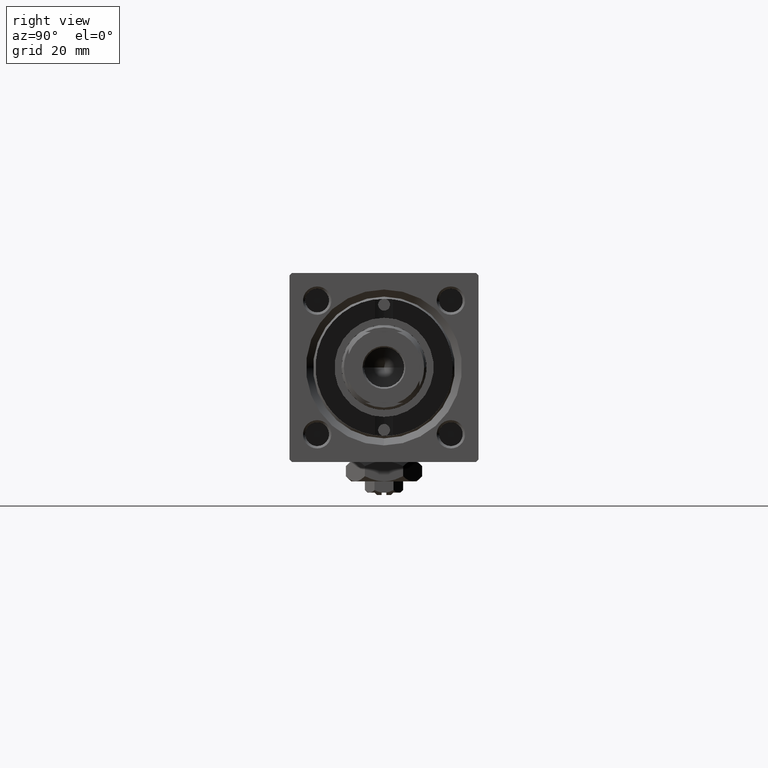
[diagram: clean part render]
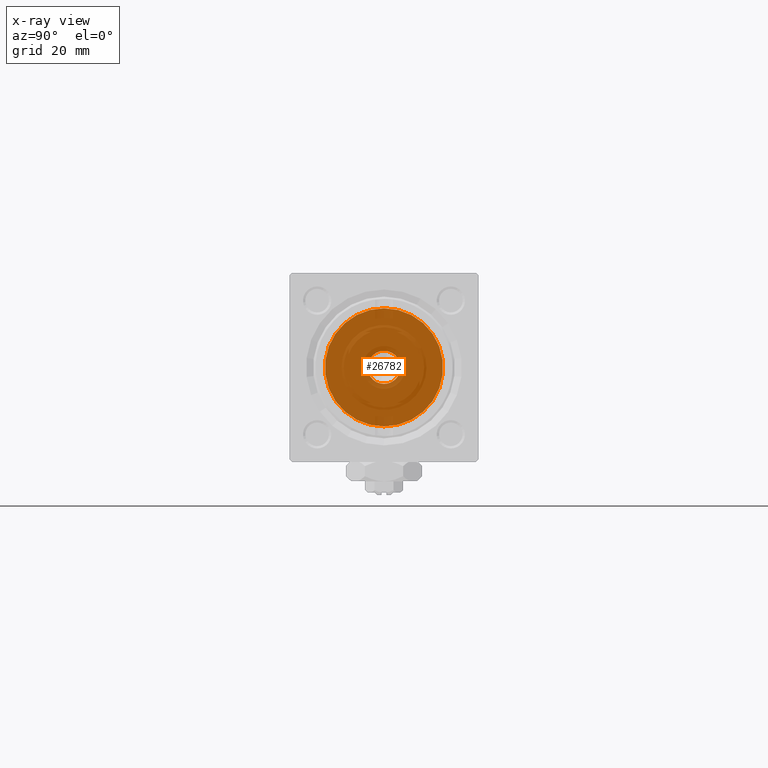
[diagram: x-ray — body ghosted, one internal face saturated and labeled with its STEP entity id]
A machine part, right view, then the same camera in x-ray: the body is ghosted and one INTERNAL B-rep face — a face not visible from any outside direction — is saturated and labeled: STEP entity #26782.
In plain terms, the highlighted planar face has unit normal (-1, 0, 0).
Its self-contained STEP definition (entity closure, byte-faithful):
#1473 = CARTESIAN_POINT ( 'NONE',  ( 24.00000000000000000, -2.602085213965210642E-15, 0.000000000000000000 ) ) ;
#1818 = CIRCLE ( 'NONE', #45679, 3.500000000000000000 ) ;
#3241 = AXIS2_PLACEMENT_3D ( 'NONE', #1473, #5944, #37391 ) ;
#4410 = EDGE_CURVE ( 'NONE', #6244, #29390, #36107, .T. ) ;
#4928 = ORIENTED_EDGE ( 'NONE', *, *, #43959, .T. ) ;
#5281 = DIRECTION ( 'NONE',  ( 0.000000000000000000, 0.000000000000000000, 1.000000000000000000 ) ) ;
#5536 = AXIS2_PLACEMENT_3D ( 'NONE', #18155, #50629, #18935 ) ;
#5944 = DIRECTION ( 'NONE',  ( 1.000000000000000000, 0.000000000000000000, 0.000000000000000000 ) ) ;
#5977 = FACE_BOUND ( 'NONE', #28302, .T. ) ;
#6244 = VERTEX_POINT ( 'NONE', #18945 ) ;
#9640 = DIRECTION ( 'NONE',  ( 0.000000000000000000, 0.000000000000000000, 1.000000000000000000 ) ) ;
#10032 = DIRECTION ( 'NONE',  ( -1.000000000000000000, -0.000000000000000000, -0.000000000000000000 ) ) ;
#13309 = EDGE_CURVE ( 'NONE', #34857, #51858, #1818, .T. ) ;
#18155 = CARTESIAN_POINT ( 'NONE',  ( 24.00000000000000000, 0.000000000000000000, 0.000000000000000000 ) ) ;
#18935 = DIRECTION ( 'NONE',  ( -0.000000000000000000, 0.000000000000000000, 1.000000000000000000 ) ) ;
#18945 = CARTESIAN_POINT ( 'NONE',  ( 24.00000000000000000, -2.602085213965210642E-15, 12.49999999999999645 ) ) ;
#18947 = DIRECTION ( 'NONE',  ( 1.000000000000000000, 0.000000000000000000, 0.000000000000000000 ) ) ;
#21042 = CARTESIAN_POINT ( 'NONE',  ( 23.99999999999999289, 0.000000000000000000, 3.500000000000000000 ) ) ;
#21727 = CARTESIAN_POINT ( 'NONE',  ( 24.00000000000000000, -1.071276715031019515E-15, -12.49999999999999645 ) ) ;
#21853 = PLANE ( 'NONE',  #5536 ) ;
#26027 = CIRCLE ( 'NONE', #3241, 12.49999999999999645 ) ;
#26141 = CARTESIAN_POINT ( 'NONE',  ( 23.99999999999999289, 0.000000000000000000, 0.000000000000000000 ) ) ;
#26577 = FACE_OUTER_BOUND ( 'NONE', #43131, .T. ) ;
#26782 = ADVANCED_FACE ( 'NONE', ( #5977, #26577 ), #21853, .F. ) ;
#28302 = EDGE_LOOP ( 'NONE', ( #38055, #32608 ) ) ;
#29390 = VERTEX_POINT ( 'NONE', #21727 ) ;
#29713 = CARTESIAN_POINT ( 'NONE',  ( 23.99999999999999289, 0.000000000000000000, 0.000000000000000000 ) ) ;
#30021 = CIRCLE ( 'NONE', #36777, 3.500000000000000000 ) ;
#32608 = ORIENTED_EDGE ( 'NONE', *, *, #37812, .T. ) ;
#34857 = VERTEX_POINT ( 'NONE', #21042 ) ;
#36107 = CIRCLE ( 'NONE', #38637, 12.49999999999999645 ) ;
#36777 = AXIS2_PLACEMENT_3D ( 'NONE', #29713, #45835, #9640 ) ;
#37391 = DIRECTION ( 'NONE',  ( 0.000000000000000000, 0.000000000000000000, -1.000000000000000000 ) ) ;
#37812 = EDGE_CURVE ( 'NONE', #51858, #34857, #30021, .T. ) ;
#38055 = ORIENTED_EDGE ( 'NONE', *, *, #13309, .T. ) ;
#38637 = AXIS2_PLACEMENT_3D ( 'NONE', #45382, #18947, #42714 ) ;
#39152 = ORIENTED_EDGE ( 'NONE', *, *, #4410, .T. ) ;
#42714 = DIRECTION ( 'NONE',  ( 0.000000000000000000, 0.000000000000000000, -1.000000000000000000 ) ) ;
#43131 = EDGE_LOOP ( 'NONE', ( #39152, #4928 ) ) ;
#43959 = EDGE_CURVE ( 'NONE', #29390, #6244, #26027, .T. ) ;
#45382 = CARTESIAN_POINT ( 'NONE',  ( 24.00000000000000000, -2.602085213965210642E-15, 0.000000000000000000 ) ) ;
#45679 = AXIS2_PLACEMENT_3D ( 'NONE', #26141, #10032, #5281 ) ;
#45835 = DIRECTION ( 'NONE',  ( -1.000000000000000000, -0.000000000000000000, -0.000000000000000000 ) ) ;
#46576 = CARTESIAN_POINT ( 'NONE',  ( 23.99999999999999289, 4.286263797015736595E-16, -3.500000000000000000 ) ) ;
#50629 = DIRECTION ( 'NONE',  ( -1.000000000000000000, 0.000000000000000000, -0.000000000000000000 ) ) ;
#51858 = VERTEX_POINT ( 'NONE', #46576 ) ;